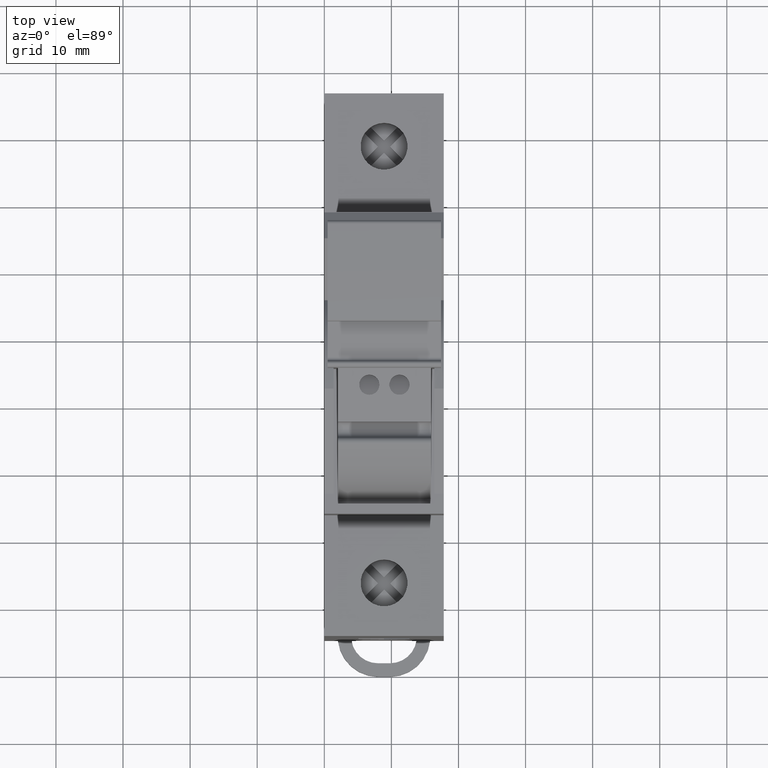
[diagram: clean part render]
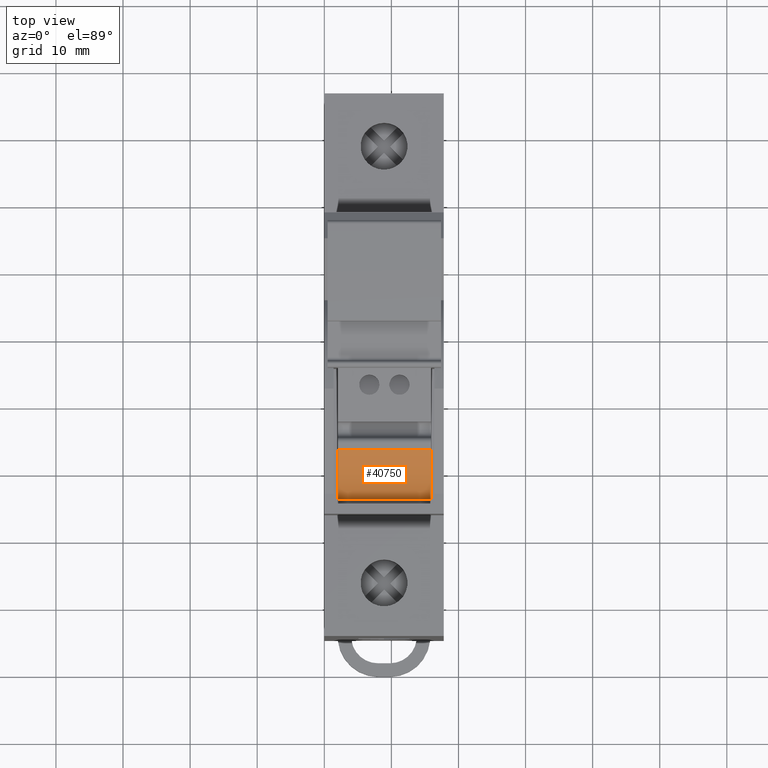
[diagram: same view with one face highlighted and labeled with its STEP entity id]
A machine part, top view. The second image highlights one B-rep face of the part: STEP entity #40750.
In plain terms, the highlighted cylindrical surface (partial cylindrical patch) has radius 12 mm, axis along (1, 0, 0).
Its self-contained STEP definition (entity closure, byte-faithful):
#9180=CARTESIAN_POINT('',(-67.9450032777245,-101.307391052976,-2.));
#9190=VERTEX_POINT('',#9180);
#9220=CARTESIAN_POINT('',(-67.9450032777245,-101.307391052976,-17.4));
#9230=DIRECTION('',(0.,0.,-1.));
#9240=VECTOR('',#9230,1.);
#9250=LINE('',#9220,#9240);
#9260=CARTESIAN_POINT('',(-67.9450032777245,-101.307391052976,-15.9));
#9270=VERTEX_POINT('',#9260);
#9280=EDGE_CURVE('',#9190,#9270,#9250,.T.);
#35590=CARTESIAN_POINT('',(-56.252305,-98.609094,-15.9));
#35600=DIRECTION('',(0.,0.,-1.));
#35610=DIRECTION('',(1.,0.,0.));
#35620=AXIS2_PLACEMENT_3D('',#35590,#35600,#35610);
#35630=CIRCLE('',#35620,12.);
#35640=CARTESIAN_POINT('',(-60.6642918033296,-109.768590962106,-15.9));
#35650=VERTEX_POINT('',#35640);
#35660=EDGE_CURVE('',#35650,#9270,#35630,.T.);
#40100=CARTESIAN_POINT('',(-60.6642918033296,-109.768590962106,-2.));
#40110=VERTEX_POINT('',#40100);
#40140=CARTESIAN_POINT('',(-56.252305,-98.609094,-2.));
#40150=DIRECTION('',(0.,0.,-1.));
#40160=DIRECTION('',(1.,0.,0.));
#40170=AXIS2_PLACEMENT_3D('',#40140,#40150,#40160);
#40180=CIRCLE('',#40170,12.);
#40190=EDGE_CURVE('',#40110,#9190,#40180,.T.);
#40590=CARTESIAN_POINT('',(-56.252305,-98.609094,-17.4));
#40600=DIRECTION('',(0.,0.,-1.));
#40610=DIRECTION('',(1.,0.,0.));
#40620=AXIS2_PLACEMENT_3D('',#40590,#40600,#40610);
#40630=CYLINDRICAL_SURFACE('',#40620,12.);
#40640=ORIENTED_EDGE('',*,*,#40190,.T.);
#40650=CARTESIAN_POINT('',(-60.6642918033296,-109.768590962106,-17.4));
#40660=DIRECTION('',(0.,0.,-1.));
#40670=VECTOR('',#40660,1.);
#40680=LINE('',#40650,#40670);
#40690=EDGE_CURVE('',#40110,#35650,#40680,.T.);
#40700=ORIENTED_EDGE('',*,*,#40690,.F.);
#40710=ORIENTED_EDGE('',*,*,#35660,.F.);
#40720=ORIENTED_EDGE('',*,*,#9280,.T.);
#40730=EDGE_LOOP('',(#40720,#40710,#40700,#40640));
#40740=FACE_OUTER_BOUND('',#40730,.T.);
#40750=ADVANCED_FACE('',(#40740),#40630,.T.);